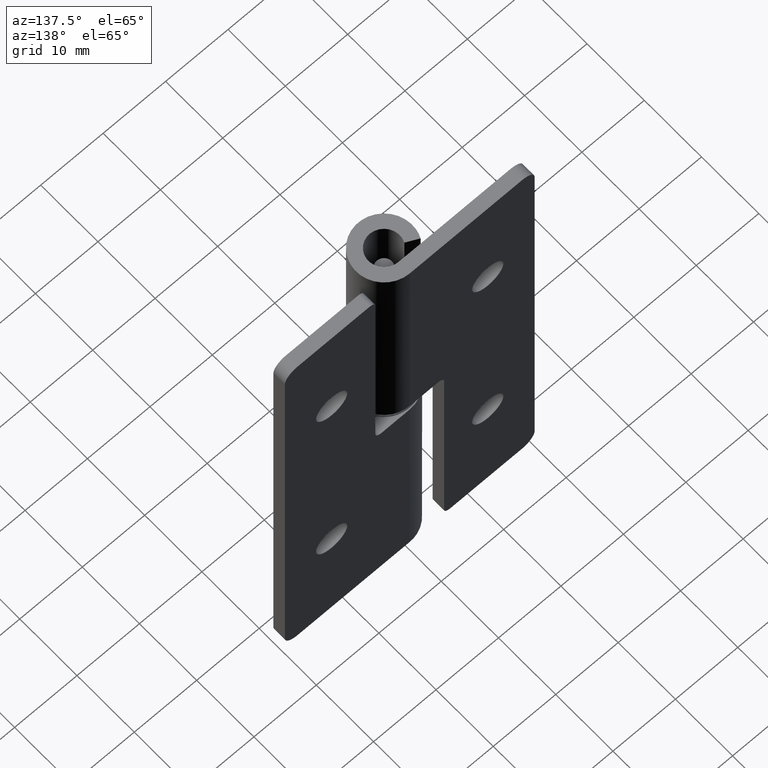
[diagram: clean part render]
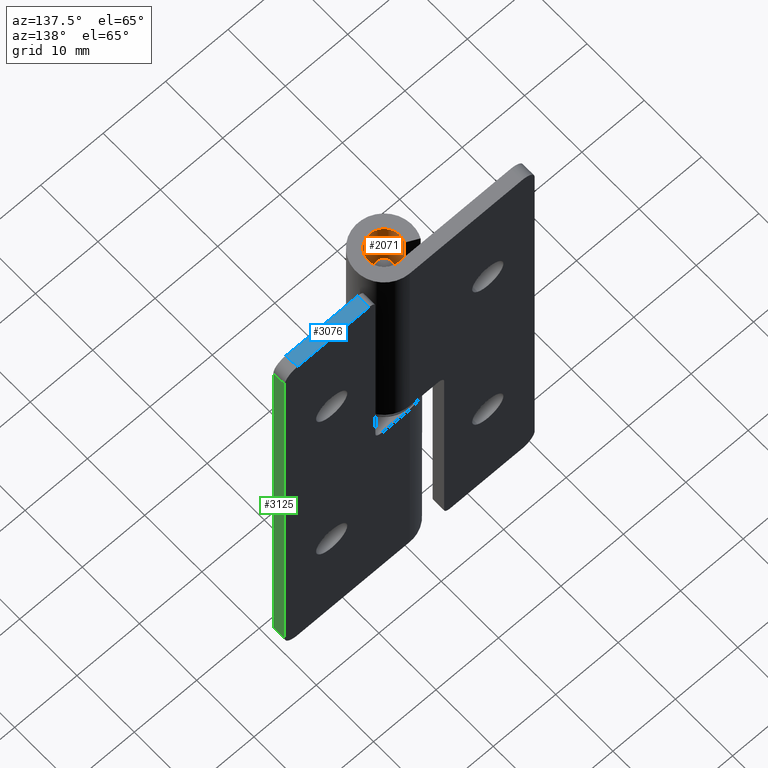
[diagram: same view with three faces highlighted in distinct colors, each labeled with its STEP entity id]
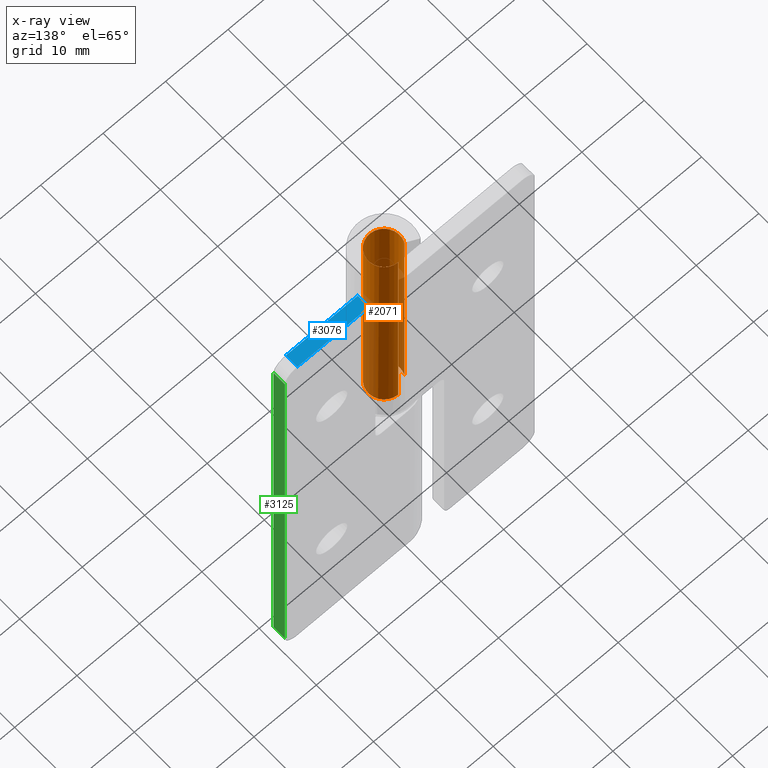
[diagram: x-ray of the same camera — body ghosted, the three highlighted faces saturated]
A machine part, auxiliary view with three faces highlighted in distinct colors.
The next image is the same camera in x-ray (body ghosted, the three faces saturated) — at least one of them is partly hidden behind the body in this view.
Their STEP definitions:

[orange] entity #2071 — the highlighted face is a freeform B-spline surface patch.
#1585=CARTESIAN_POINT('',(1.685423E-011,2.500000000000000,38.0));
#1586=VERTEX_POINT('',#1585);
#1592=CARTESIAN_POINT('',(1.685423E-011,2.500000000000075,75.0));
#1593=VERTEX_POINT('',#1592);
#1594=CARTESIAN_POINT('',(1.685423E-011,2.500000000000075,75.0));
#1595=CARTESIAN_POINT('',(1.685423E-011,2.500000000000000,38.0));
#1596=QUASI_UNIFORM_CURVE('',1,(#1594,#1595),.UNSPECIFIED.,.F.,.U.);
#1597=EDGE_CURVE('',#1593,#1586,#1596,.T.);
#1864=CARTESIAN_POINT('',(-2.239516041180845,1.111111111103910,38.0));
#1865=VERTEX_POINT('',#1864);
#1871=CARTESIAN_POINT('',(-2.239516041180845,1.111111111103910,38.0));
#1872=CARTESIAN_POINT('',(-2.351887487631816,0.884885571420742,38.000000000000043));
#1873=CARTESIAN_POINT('',(-2.465660744303185,0.527879504155560,38.000000000000007));
#1874=CARTESIAN_POINT('',(-2.510955410840905,0.006514216038417,38.000000000000007));
#1875=CARTESIAN_POINT('',(-2.476804042760794,-0.448751662635114,37.999999999999957));
#1876=CARTESIAN_POINT('',(-2.333192051977989,-0.953993362443431,38.000000000000043));
#1877=CARTESIAN_POINT('',(-2.089785682175509,-1.400230805091031,38.000000000000213));
#1878=CARTESIAN_POINT('',(-1.734416128131380,-1.829795809410835,37.999999999999659));
#1879=CARTESIAN_POINT('',(-1.276669922863329,-2.183115704094763,38.000000000000199));
#1880=CARTESIAN_POINT('',(-0.697228262417485,-2.424353754260498,37.999999999999858));
#1881=CARTESIAN_POINT('',(-0.095262064446465,-2.522871442080252,38.000000000000249));
#1882=CARTESIAN_POINT('',(0.581980698864756,-2.468512128863679,37.999999999999837));
#1883=CARTESIAN_POINT('',(1.169706367294177,-2.238356460618825,38.000000000000107));
#1884=CARTESIAN_POINT('',(1.638541035430554,-1.906472992480132,37.999999999999957));
#1885=CARTESIAN_POINT('',(1.945895263240705,-1.591570545414980,38.000000000000007));
#1886=CARTESIAN_POINT('',(2.200178001667992,-1.212863277597640,38.000000000000092));
#1887=CARTESIAN_POINT('',(2.393085576512185,-0.780477691137017,37.999999999999623));
#1888=CARTESIAN_POINT('',(2.488131814099131,-0.350330531368128,38.000000000001542));
#1889=CARTESIAN_POINT('',(2.508949886334807,0.104693946923643,37.999999999995488));
#1890=CARTESIAN_POINT('',(2.450292117698336,0.609045562842824,38.000000000005343));
#1891=CARTESIAN_POINT('',(2.223663352577451,1.214304131764963,37.999999999996298));
#1892=CARTESIAN_POINT('',(1.847131395801599,1.718536930727704,38.000000000001883));
#1893=CARTESIAN_POINT('',(1.354509010691809,2.131113253702940,37.999999999996227));
#1894=CARTESIAN_POINT('',(0.757711485340726,2.422835424166097,38.000000000008782));
#1895=CARTESIAN_POINT('',(0.252584026921998,2.500092815944145,37.999999999995097));
#1896=CARTESIAN_POINT('',(1.685423E-011,2.500000000000000,38.0));
#1897=B_SPLINE_CURVE_WITH_KNOTS('',3,(#1871,#1872,#1873,#1874,#1875,#1876,#1877,#1878,#1879,#1880,#1881,#1882,#1883,#1884,#1885,#1886,#1887,#1888,#1889,#1890,#1891,#1892,#1893,#1894,#1895,#1896),.UNSPECIFIED.,.F.,.U.,(4,1,1,1,1,1,1,1,1,1,1,1,1,1,1,1,1,1,1,1,1,1,1,4),(0.000000192419579,0.757751536234801,1.111381258182501,1.566055008952260,2.121763753813491,2.677478931585979,3.081608201107599,3.788820638538361,4.395043030938977,4.950755188386778,5.607510916335750,6.415779395840402,6.819874317016881,7.325066656238578,7.729223221954750,8.183899503805719,8.739611086258734,9.042705490073759,9.547903622646803,10.255109269344789,10.962367537371890,11.417043819224579,12.174831823150949,12.932577417122831),.UNSPECIFIED.);
#1898=EDGE_CURVE('',#1865,#1586,#1897,.T.);
#1933=CARTESIAN_POINT('',(-2.239516041180845,1.111111111103910,75.0));
#1934=VERTEX_POINT('',#1933);
#1935=CARTESIAN_POINT('',(1.685423E-011,2.500000000000075,75.0));
#1936=CARTESIAN_POINT('',(0.252591975599591,2.500114948849681,75.000000000000028));
#1937=CARTESIAN_POINT('',(0.690327629640895,2.433061923412325,74.999999999999901));
#1938=CARTESIAN_POINT('',(1.310762102141767,2.160296216096266,74.999999999999901));
#1939=CARTESIAN_POINT('',(1.845436029835899,1.739586173115261,75.000000000000412));
#1940=CARTESIAN_POINT('',(2.216702724309390,1.209374962253835,74.999999999999773));
#1941=CARTESIAN_POINT('',(2.411498201476916,0.704579025073912,75.000000000000242));
#1942=CARTESIAN_POINT('',(2.497371245694370,0.273832902924739,74.999999999999844));
#1943=CARTESIAN_POINT('',(2.507932104791547,-0.148749294654167,74.999999999999446));
#1944=CARTESIAN_POINT('',(2.443689507448814,-0.583288492887832,75.000000000001080));
#1945=CARTESIAN_POINT('',(2.306013340854215,-1.000811577848030,74.999999999999730));
#1946=CARTESIAN_POINT('',(2.095075522003032,-1.386536234200457,75.000000000000114));
#1947=CARTESIAN_POINT('',(1.790024433293009,-1.769911507296229,74.999999999999972));
#1948=CARTESIAN_POINT('',(1.373686722660873,-2.118209737761887,75.000000000000028));
#1949=CARTESIAN_POINT('',(0.794405649999114,-2.400974458482660,74.999999999999972));
#1950=CARTESIAN_POINT('',(0.210009201382671,-2.514224797798097,74.999999999999986));
#1951=CARTESIAN_POINT('',(-0.330635007416849,-2.491970150130683,74.999999999999972));
#1952=CARTESIAN_POINT('',(-0.825380068234596,-2.379887735006587,75.000000000000043));
#1953=CARTESIAN_POINT('',(-1.363803620916407,-2.129756221773406,74.999999999999972));
#1954=CARTESIAN_POINT('',(-1.885184382034060,-1.692681168317102,75.000000000000185));
#1955=CARTESIAN_POINT('',(-2.292200625099315,-1.085077367961738,74.999999999998948));
#1956=CARTESIAN_POINT('',(-2.511752642025493,-0.368434732243670,75.000000000002956));
#1957=CARTESIAN_POINT('',(-2.507133174837816,0.398056551469868,74.999999999994031));
#1958=CARTESIAN_POINT('',(-2.351862778875593,0.884885977621367,75.000000000006409));
#1959=CARTESIAN_POINT('',(-2.239516041180845,1.111111111103910,75.0));
#1960=B_SPLINE_CURVE_WITH_KNOTS('',3,(#1935,#1936,#1937,#1938,#1939,#1940,#1941,#1942,#1943,#1944,#1945,#1946,#1947,#1948,#1949,#1950,#1951,#1952,#1953,#1954,#1955,#1956,#1957,#1958,#1959),.UNSPECIFIED.,.F.,.U.,(4,1,1,1,1,1,1,1,1,1,1,1,1,1,1,1,1,1,1,1,1,1,4),(0.000000192388500,0.757751536205529,1.313458317455284,2.020717679413545,2.778520095724883,3.233144470942671,3.637249053113004,4.091922340799300,4.496078906517111,4.950755188367435,5.405414609030894,5.809561174619645,6.415779395824635,7.021964953927320,7.729223221942169,8.183899503794248,8.638558924444888,9.244807088938892,9.951987067021149,10.659255117159651,11.417043819220989,12.174831823149210,12.932577417122960),.UNSPECIFIED.);
#1961=EDGE_CURVE('',#1593,#1934,#1960,.T.);
#2039=CARTESIAN_POINT('',(-2.197042781638125,1.192896900649057,75.925000000000011));
#2040=CARTESIAN_POINT('',(-2.197042781638125,1.192896900649057,37.051874999999988));
#2041=CARTESIAN_POINT('',(-3.644142438007239,-1.472329115640600,75.925000000000011));
#2042=CARTESIAN_POINT('',(-3.644142438007239,-1.472329115640600,37.051874999999988));
#2043=CARTESIAN_POINT('',(-0.751764498743852,-2.384292376870638,75.925000000000011));
#2044=CARTESIAN_POINT('',(-0.751764498743852,-2.384292376870638,37.051874999999988));
#2045=CARTESIAN_POINT('',(2.140613440519535,-3.296255638100677,75.925000000000011));
#2046=CARTESIAN_POINT('',(2.140613440519535,-3.296255638100677,37.051874999999988));
#2047=CARTESIAN_POINT('',(2.483929639208397,-0.283008034419779,75.925000000000011));
#2048=CARTESIAN_POINT('',(2.483929639208397,-0.283008034419779,37.051874999999988));
#2049=CARTESIAN_POINT('',(2.827245837897260,2.730239569261119,75.925000000000011));
#2050=CARTESIAN_POINT('',(2.827245837897260,2.730239569261119,37.051874999999988));
#2051=CARTESIAN_POINT('',(-0.196147739302760,2.492293334332895,75.925000000000011));
#2052=CARTESIAN_POINT('',(-0.196147739302760,2.492293334332895,37.051874999999988));
#2060=(BOUNDED_SURFACE()B_SPLINE_SURFACE(1,2,((#2039,#2041,#2043,#2045,#2047,#2049,#2051),(#2040,#2042,#2044,#2046,#2048,#2050,#2052)),.UNSPECIFIED.,.F.,.F.,.U.)B_SPLINE_SURFACE_WITH_KNOTS((2,2),(3,2,2,3),(0.0,38.873125000000023),(0.0,4.716306187712351,9.432612375424702,14.148918563137050),.UNSPECIFIED.)GEOMETRIC_REPRESENTATION_ITEM()RATIONAL_B_SPLINE_SURFACE(((1.0,0.636078220277764,1.0,0.636078220277764,1.0,0.636078220277764,1.0),(1.0,0.636078220277764,1.0,0.636078220277764,1.0,0.636078220277764,1.0)))REPRESENTATION_ITEM('')SURFACE());
#2061=ORIENTED_EDGE('',*,*,#1898,.F.);
#2062=CARTESIAN_POINT('',(-2.239516041180845,1.111111111103910,75.0));
#2063=CARTESIAN_POINT('',(-2.239516041180845,1.111111111103910,38.0));
#2064=QUASI_UNIFORM_CURVE('',1,(#2062,#2063),.UNSPECIFIED.,.F.,.U.);
#2065=EDGE_CURVE('',#1934,#1865,#2064,.T.);
#2066=ORIENTED_EDGE('',*,*,#2065,.F.);
#2067=ORIENTED_EDGE('',*,*,#1961,.F.);
#2068=ORIENTED_EDGE('',*,*,#1597,.T.);
#2069=EDGE_LOOP('',(#2061,#2066,#2067,#2068));
#2070=FACE_OUTER_BOUND('',#2069,.T.);
#2071=ADVANCED_FACE('',(#2070),#2060,.F.);

[blue] entity #3076 — the highlighted face is a freeform B-spline surface patch.
#2653=CARTESIAN_POINT('',(18.000000000024752,2.499999999941865,75.0));
#2654=VERTEX_POINT('',#2653);
#2655=CARTESIAN_POINT('',(6.500000000000000,2.499999999979055,75.0));
#2656=VERTEX_POINT('',#2655);
#2657=CARTESIAN_POINT('',(18.000000000024752,2.499999999941865,75.0));
#2658=CARTESIAN_POINT('',(6.500000000000000,2.499999999979055,75.0));
#2659=QUASI_UNIFORM_CURVE('',1,(#2657,#2658),.UNSPECIFIED.,.F.,.U.);
#2660=EDGE_CURVE('',#2654,#2656,#2659,.T.);
#2822=CARTESIAN_POINT('',(6.500000000000000,4.499999999997835,75.0));
#2823=VERTEX_POINT('',#2822);
#2824=CARTESIAN_POINT('',(6.500000000000000,4.499999999997835,75.0));
#2825=CARTESIAN_POINT('',(6.500000000000000,2.499999999979055,75.0));
#2826=QUASI_UNIFORM_CURVE('',1,(#2824,#2825),.UNSPECIFIED.,.F.,.U.);
#2827=EDGE_CURVE('',#2823,#2656,#2826,.T.);
#2866=CARTESIAN_POINT('',(18.000000000031200,4.499999999994159,75.0));
#2867=VERTEX_POINT('',#2866);
#2883=CARTESIAN_POINT('',(18.000000000024752,2.499999999941865,75.0));
#2884=CARTESIAN_POINT('',(18.000000000031200,4.499999999994159,75.0));
#2885=QUASI_UNIFORM_CURVE('',1,(#2883,#2884),.UNSPECIFIED.,.F.,.U.);
#2886=EDGE_CURVE('',#2654,#2867,#2885,.T.);
#3061=CARTESIAN_POINT('',(5.925575022287672,2.400100003815457,75.0));
#3062=CARTESIAN_POINT('',(18.574425286197560,2.400100003815457,75.0));
#3063=CARTESIAN_POINT('',(5.925575022287672,4.599900049768422,75.0));
#3064=CARTESIAN_POINT('',(18.574425286197560,4.599900049768422,75.0));
#3065=B_SPLINE_SURFACE_WITH_KNOTS('',1,1,((#3061,#3063),(#3062,#3064)),.UNSPECIFIED.,.F.,.F.,.U.,(2,2),(2,2),(0.0,12.648850263909891),(0.0,2.199800045952965),.UNSPECIFIED.);
#3066=CARTESIAN_POINT('',(6.500000000000000,4.499999999997835,75.0));
#3067=CARTESIAN_POINT('',(18.000000000031200,4.499999999994159,75.0));
#3068=QUASI_UNIFORM_CURVE('',1,(#3066,#3067),.UNSPECIFIED.,.F.,.U.);
#3069=EDGE_CURVE('',#2823,#2867,#3068,.T.);
#3070=ORIENTED_EDGE('',*,*,#3069,.F.);
#3071=ORIENTED_EDGE('',*,*,#2827,.T.);
#3072=ORIENTED_EDGE('',*,*,#2660,.F.);
#3073=ORIENTED_EDGE('',*,*,#2886,.T.);
#3074=EDGE_LOOP('',(#3070,#3071,#3072,#3073));
#3075=FACE_OUTER_BOUND('',#3074,.T.);
#3076=ADVANCED_FACE('',(#3075),#3065,.T.);

[green] entity #3125 — the highlighted face is a freeform B-spline surface patch.
#2712=CARTESIAN_POINT('',(20.000000000024752,2.499999999935400,2.0));
#2713=VERTEX_POINT('',#2712);
#2727=CARTESIAN_POINT('',(20.000000000024752,2.499999999935400,73.0));
#2728=VERTEX_POINT('',#2727);
#2729=CARTESIAN_POINT('',(20.000000000024752,2.499999999935400,73.0));
#2730=CARTESIAN_POINT('',(20.000000000024752,2.499999999935400,2.0));
#2731=QUASI_UNIFORM_CURVE('',1,(#2729,#2730),.UNSPECIFIED.,.F.,.U.);
#2732=EDGE_CURVE('',#2728,#2713,#2731,.T.);
#2868=CARTESIAN_POINT('',(20.000000000031200,4.499999999935909,73.0));
#2869=VERTEX_POINT('',#2868);
#2889=CARTESIAN_POINT('',(20.000000000031200,4.499999999935909,73.0));
#2890=CARTESIAN_POINT('',(20.000000000024752,2.499999999935400,73.0));
#2891=QUASI_UNIFORM_CURVE('',1,(#2889,#2890),.UNSPECIFIED.,.F.,.U.);
#2892=EDGE_CURVE('',#2869,#2728,#2891,.T.);
#2911=CARTESIAN_POINT('',(20.000000000031200,4.499999999935909,2.0));
#2912=VERTEX_POINT('',#2911);
#2928=CARTESIAN_POINT('',(20.000000000024752,2.499999999935400,2.0));
#2929=CARTESIAN_POINT('',(20.000000000031200,4.499999999935909,2.0));
#2930=QUASI_UNIFORM_CURVE('',1,(#2928,#2929),.UNSPECIFIED.,.F.,.U.);
#2931=EDGE_CURVE('',#2713,#2912,#2930,.T.);
#3110=CARTESIAN_POINT('',(20.000000000024450,2.400100003811763,-1.546449862388220));
#3111=CARTESIAN_POINT('',(20.000000000031520,4.599900049703726,-1.546449862388220));
#3112=CARTESIAN_POINT('',(20.000000000024450,2.400100003811763,76.546451766756618));
#3113=CARTESIAN_POINT('',(20.000000000031520,4.599900049703726,76.546451766756618));
#3114=B_SPLINE_SURFACE_WITH_KNOTS('',1,1,((#3110,#3112),(#3111,#3113)),.UNSPECIFIED.,.F.,.F.,.U.,(2,2),(2,2),(0.0,2.199800045891964),(0.0,78.092901629144833),.UNSPECIFIED.);
#3115=ORIENTED_EDGE('',*,*,#2732,.T.);
#3116=ORIENTED_EDGE('',*,*,#2931,.T.);
#3117=CARTESIAN_POINT('',(20.000000000031200,4.499999999935909,73.0));
#3118=CARTESIAN_POINT('',(20.000000000031200,4.499999999935909,2.0));
#3119=QUASI_UNIFORM_CURVE('',1,(#3117,#3118),.UNSPECIFIED.,.F.,.U.);
#3120=EDGE_CURVE('',#2869,#2912,#3119,.T.);
#3121=ORIENTED_EDGE('',*,*,#3120,.F.);
#3122=ORIENTED_EDGE('',*,*,#2892,.T.);
#3123=EDGE_LOOP('',(#3115,#3116,#3121,#3122));
#3124=FACE_OUTER_BOUND('',#3123,.T.);
#3125=ADVANCED_FACE('',(#3124),#3114,.T.);